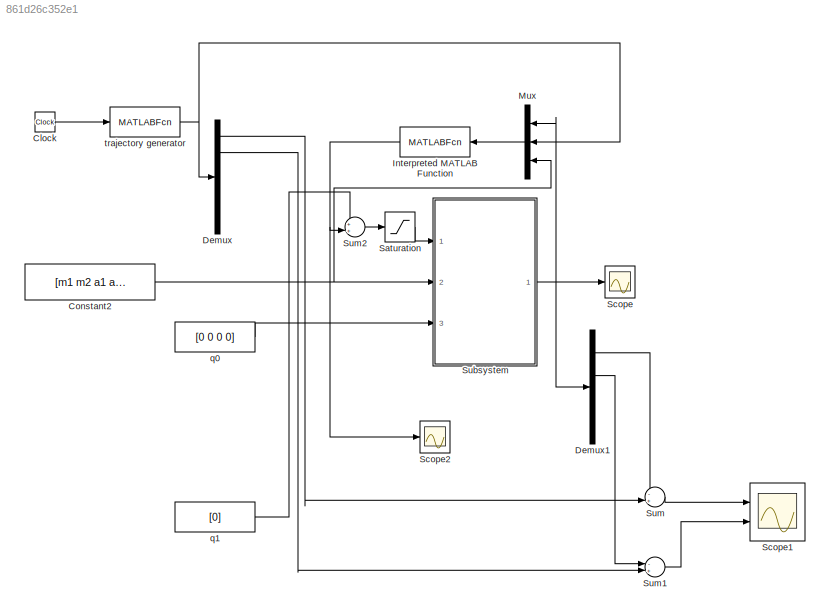
MODEL slx_861d26c352e1
KIND model
BLOCK [Clock] Clock
BLOCK [Constant] Constant2
  Value = [m1 m2 a1 a2 b1 b2 g]
BLOCK [Demux] Demux
  DisplayOption = bar
  Outputs = 6
  Ports = [1, 6]
BLOCK [Demux] Demux1
  DisplayOption = bar
  Ports = [1, 4]
BLOCK [MATLABFcn] Interpreted MATLAB Function
  MATLABFcn = ct_gravit_inertia_planar_robot_simulink
  Ports = [1, 1]
BLOCK [Mux] Mux
  DisplayOption = bar
  Inputs = 3
  Ports = [3, 1]
BLOCK [Saturate] Saturation
  InputPortMap = u0
  LowerLimit = -40
  Ports = [1, 1]
  UpperLimit = 40
BLOCK [Scope] Scope
  Floating = off
  LimitDataPoints = off
  NumInputPorts = 1
  Ports = [1]
  ShowLegends = off
  YMax = 0.6
  YMin = -0.4
BLOCK [Scope] Scope1
  Floating = off
  LimitDataPoints = off
  NumInputPorts = 2
  Ports = [2]
  SaveName = ScopeData1
  ShowLegends = off
  TimeRange = 10
  YMax = 0.11~5e-08
  YMin = -0.03~-2.75e-07
  ZoomMode = yonly
BLOCK [Scope] Scope2
  Floating = off
  LimitDataPoints = off
  NumInputPorts = 1
  Ports = [1]
  SaveName = ScopeData2
  ShowLegends = off
  YMax = 35
  YMin = 7.5
  ZoomMode = yonly
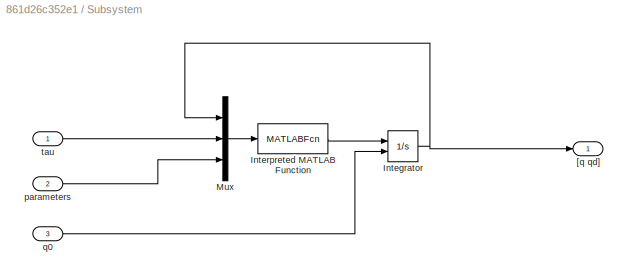
BLOCK [SubSystem] Subsystem
  Ports = [3, 1]
  RequestExecContextInheritance = off
BLOCK [Integrator] Subsystem/Integrator
  InitialConditionSource = external
  Ports = [2, 1]
BLOCK [MATLABFcn] Subsystem/Interpreted MATLAB Function
  MATLABFcn = planar_robot_simulink
  OutputDimensions = 4
  Ports = [1, 1]
BLOCK [Mux] Subsystem/Mux
  DisplayOption = bar
  Inputs = 3
  Ports = [3, 1]
BLOCK [Outport] Subsystem/[q qd]
  IconDisplay = Port number
BLOCK [Inport] Subsystem/parameters
  IconDisplay = Port number
  Port = 2
BLOCK [Inport] Subsystem/q0
  IconDisplay = Port number
  Port = 3
BLOCK [Inport] Subsystem/tau
  IconDisplay = Port number
BLOCK [Sum] Sum
  IconShape = round
  InputSameDT = off
  Inputs = -+|
  OutDataTypeStr = Inherit: Inherit via internal rule
  Ports = [2, 1]
  SaturateOnIntegerOverflow = off
BLOCK [Sum] Sum1
  IconShape = round
  InputSameDT = off
  Inputs = -+|
  OutDataTypeStr = Inherit: Inherit via internal rule
  Ports = [2, 1]
  SaturateOnIntegerOverflow = off
BLOCK [Sum] Sum2
  IconShape = round
  InputSameDT = off
  Inputs = ++|
  OutDataTypeStr = Inherit: Inherit via internal rule
  Ports = [2, 1]
  SaturateOnIntegerOverflow = off
BLOCK [Constant] q0
  Value = [0 0 0 0]
BLOCK [Constant] q1
  Value = [0]
BLOCK [MATLABFcn] trajectory generator
  MATLABFcn = trajectory_planar_robot_simulink
  Ports = [1, 1]
LINE Clock:1 -> trajectory generator:1
NET Constant2:1 -> Mux:3, Subsystem:2
LINE Demux1:1 -> Sum:1
LINE Demux1:2 -> Sum1:1
LINE Demux:1 -> Sum:2
LINE Demux:2 -> Sum1:2
NET Interpreted MATLAB Function:1 -> Scope2:1, Sum2:2
LINE Mux:1 -> Interpreted MATLAB Function:1
LINE Saturation:1 -> Subsystem:1
NET Subsystem/Integrator:1 -> Subsystem/Mux:1, Subsystem/[q qd]:1
LINE Subsystem/Interpreted MATLAB Function:1 -> Subsystem/Integrator:1
LINE Subsystem/Mux:1 -> Subsystem/Interpreted MATLAB Function:1
LINE Subsystem/parameters:1 -> Subsystem/Mux:3
LINE Subsystem/q0:1 -> Subsystem/Integrator:2
LINE Subsystem/tau:1 -> Subsystem/Mux:2
NET Subsystem:1 -> Demux1:1, Mux:1, Scope:1
LINE Sum1:1 -> Scope1:2
LINE Sum2:1 -> Saturation:1
LINE Sum:1 -> Scope1:1
LINE q0:1 -> Subsystem:3
LINE q1:1 -> Sum2:1
NET trajectory generator:1 -> Demux:1, Mux:2
note: NET lines group one-source signal fan-out (src -> all destinations, sorted); 1:1 wires keep LINE
